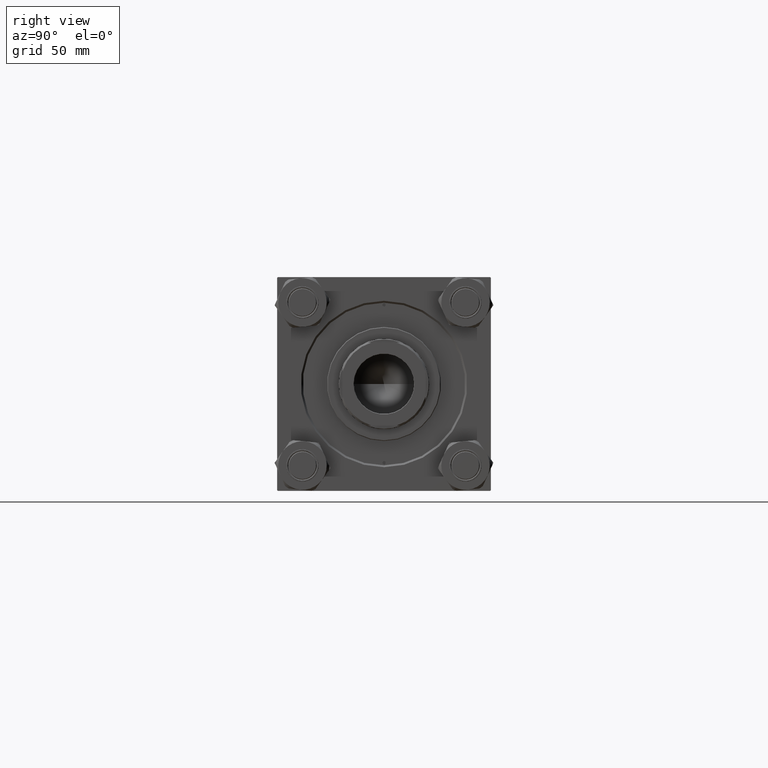
[diagram: clean part render]
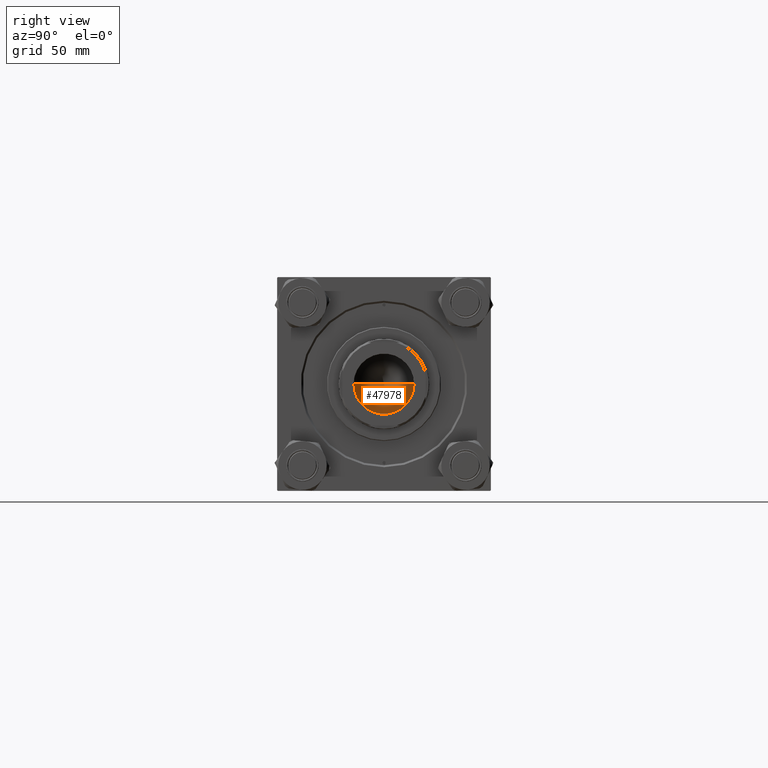
[diagram: same view with one face highlighted and labeled with its STEP entity id]
A machine part, right view. The second image highlights one B-rep face of the part: STEP entity #47978.
In plain terms, the highlighted conical surface has half-angle 59 deg.
Its self-contained STEP definition (entity closure, byte-faithful):
#2408 = DIRECTION ( 'NONE',  ( -0.8571673007021117785, 1.049727191138617956E-16, 0.5150380749100550437 ) ) ;
#4080 = EDGE_LOOP ( 'NONE', ( #32937, #7083, #49310 ) ) ;
#6764 = DIRECTION ( 'NONE',  ( -0.000000000000000000, -0.000000000000000000, 1.000000000000000000 ) ) ;
#7083 = ORIENTED_EDGE ( 'NONE', *, *, #17833, .T. ) ;
#7120 = CIRCLE ( 'NONE', #12842, 23.24999999999998579 ) ;
#9244 = AXIS2_PLACEMENT_3D ( 'NONE', #50120, #6764, #42228 ) ;
#10281 = CARTESIAN_POINT ( 'NONE',  ( -1.584115414415908206E-14, 0.000000000000000000, 295.0299906076091929 ) ) ;
#10783 = DIRECTION ( 'NONE',  ( -0.000000000000000000, -0.000000000000000000, 1.000000000000000000 ) ) ;
#12842 = AXIS2_PLACEMENT_3D ( 'NONE', #45493, #10783, #21727 ) ;
#12923 = EDGE_CURVE ( 'NONE', #20991, #19036, #7120, .T. ) ;
#13330 = CARTESIAN_POINT ( 'NONE',  ( 23.24999999999998579, 0.000000000000000000, 309.0000000000000000 ) ) ;
#15694 = VERTEX_POINT ( 'NONE', #10281 ) ;
#17833 = EDGE_CURVE ( 'NONE', #15694, #20991, #20464, .T. ) ;
#19036 = VERTEX_POINT ( 'NONE', #23822 ) ;
#20464 = LINE ( 'NONE', #13330, #38957 ) ;
#20991 = VERTEX_POINT ( 'NONE', #36509 ) ;
#21727 = DIRECTION ( 'NONE',  ( 1.000000000000000000, 0.000000000000000000, 0.000000000000000000 ) ) ;
#21785 = CARTESIAN_POINT ( 'NONE',  ( -23.24999999999998579, 2.847303808017594561E-15, 309.0000000000000000 ) ) ;
#23145 = VECTOR ( 'NONE', #2408, 1000.000000000000000 ) ;
#23822 = CARTESIAN_POINT ( 'NONE',  ( -23.24999999999998579, 2.847303808017594561E-15, 309.0000000000000000 ) ) ;
#30742 = FACE_OUTER_BOUND ( 'NONE', #4080, .T. ) ;
#31259 = CONICAL_SURFACE ( 'NONE', #9244, 23.24999999999998579, 1.029744258676653423 ) ;
#32937 = ORIENTED_EDGE ( 'NONE', *, *, #50280, .F. ) ;
#36509 = CARTESIAN_POINT ( 'NONE',  ( 23.24999999999998579, 0.000000000000000000, 309.0000000000000000 ) ) ;
#38957 = VECTOR ( 'NONE', #40394, 1000.000000000000000 ) ;
#40394 = DIRECTION ( 'NONE',  ( 0.8571673007021117785, 0.000000000000000000, 0.5150380749100550437 ) ) ;
#42228 = DIRECTION ( 'NONE',  ( 1.000000000000000000, 0.000000000000000000, 0.000000000000000000 ) ) ;
#45493 = CARTESIAN_POINT ( 'NONE',  ( 0.000000000000000000, 0.000000000000000000, 309.0000000000000000 ) ) ;
#47978 = ADVANCED_FACE ( 'NONE', ( #30742 ), #31259, .F. ) ;
#48841 = LINE ( 'NONE', #21785, #23145 ) ;
#49310 = ORIENTED_EDGE ( 'NONE', *, *, #12923, .T. ) ;
#50120 = CARTESIAN_POINT ( 'NONE',  ( 0.000000000000000000, 0.000000000000000000, 309.0000000000000000 ) ) ;
#50280 = EDGE_CURVE ( 'NONE', #15694, #19036, #48841, .T. ) ;